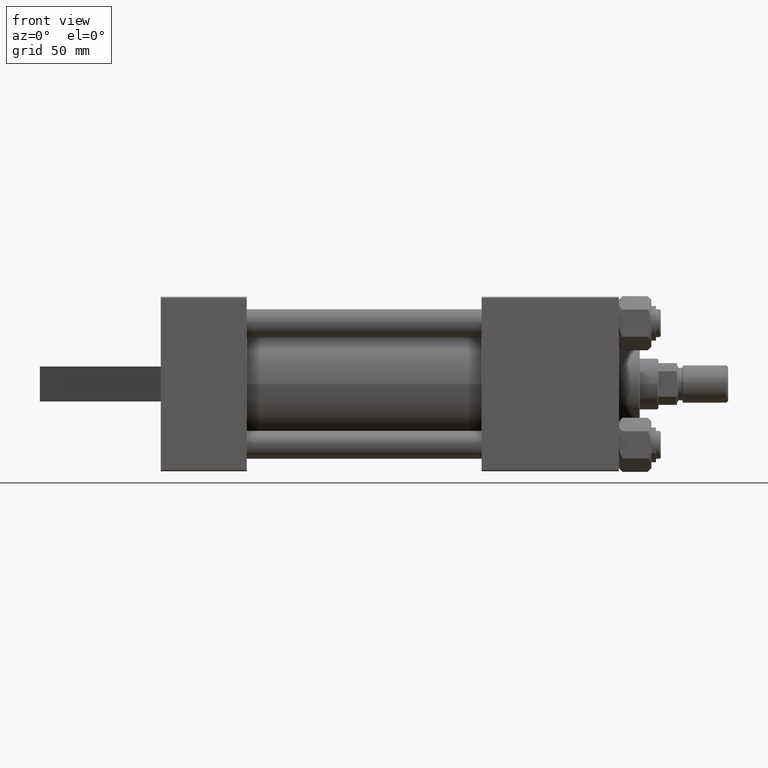
[diagram: clean part render]
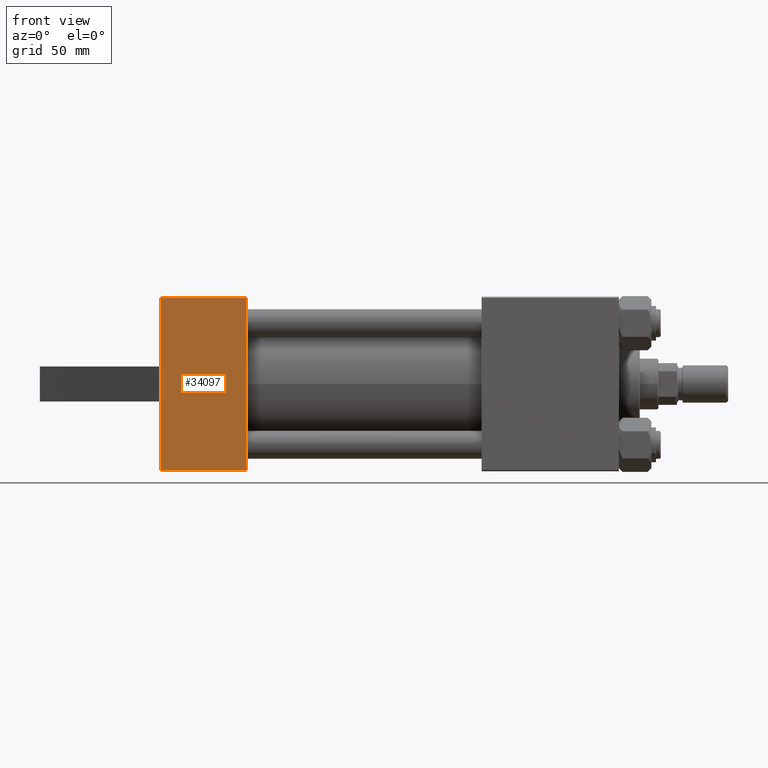
[diagram: same view with one face highlighted and labeled with its STEP entity id]
A machine part, front view. The second image highlights one B-rep face of the part: STEP entity #34097.
In plain terms, the highlighted planar face has unit normal (-0, 1, 0).
Its self-contained STEP definition (entity closure, byte-faithful):
#574 = CARTESIAN_POINT ( 'NONE',  ( 0.000000000000000000, 36.99999999999999289, 37.50000000000000000 ) ) ;
#1351 = DIRECTION ( 'NONE',  ( 1.000000000000000000, 0.000000000000000000, 0.000000000000000000 ) ) ;
#2893 = CARTESIAN_POINT ( 'NONE',  ( 37.00000000000000000, 37.49999999999999289, 37.50000000000000000 ) ) ;
#5835 = LINE ( 'NONE', #23252, #20864 ) ;
#5962 = CARTESIAN_POINT ( 'NONE',  ( 0.000000000000000000, -7.500000000000000000, 37.49999999999999289 ) ) ;
#7232 = PLANE ( 'NONE',  #44794 ) ;
#9875 = VERTEX_POINT ( 'NONE', #5962 ) ;
#9936 = LINE ( 'NONE', #2893, #33043 ) ;
#9938 = VERTEX_POINT ( 'NONE', #18396 ) ;
#10166 = DIRECTION ( 'NONE',  ( 0.000000000000000000, -1.000000000000000000, -9.251858538542971581E-17 ) ) ;
#10576 = VECTOR ( 'NONE', #14221, 1000.000000000000000 ) ;
#10845 = ORIENTED_EDGE ( 'NONE', *, *, #19666, .F. ) ;
#11071 = CARTESIAN_POINT ( 'NONE',  ( 37.00000000000000000, -37.00000000000000711, 37.49999999999999289 ) ) ;
#11670 = ORIENTED_EDGE ( 'NONE', *, *, #36870, .T. ) ;
#12639 = LINE ( 'NONE', #13563, #28930 ) ;
#13265 = EDGE_CURVE ( 'NONE', #9875, #9938, #12639, .T. ) ;
#13475 = ORIENTED_EDGE ( 'NONE', *, *, #41520, .F. ) ;
#13563 = CARTESIAN_POINT ( 'NONE',  ( 0.000000000000000000, 37.49999999999999289, 37.50000000000000000 ) ) ;
#14221 = DIRECTION ( 'NONE',  ( -1.000000000000000000, 0.000000000000000000, 0.000000000000000000 ) ) ;
#14292 = FACE_OUTER_BOUND ( 'NONE', #27146, .T. ) ;
#15614 = VECTOR ( 'NONE', #44267, 1000.000000000000000 ) ;
#18055 = DIRECTION ( 'NONE',  ( 0.000000000000000000, 9.251858538542971581E-17, -1.000000000000000000 ) ) ;
#18396 = CARTESIAN_POINT ( 'NONE',  ( 0.000000000000000000, -37.00000000000000711, 37.49999999999999289 ) ) ;
#19666 = EDGE_CURVE ( 'NONE', #9875, #30241, #5835, .T. ) ;
#20401 = DIRECTION ( 'NONE',  ( 0.000000000000000000, -1.000000000000000000, -9.251858538542971581E-17 ) ) ;
#20735 = VERTEX_POINT ( 'NONE', #29748 ) ;
#20864 = VECTOR ( 'NONE', #44850, 1000.000000000000000 ) ;
#21450 = VERTEX_POINT ( 'NONE', #34801 ) ;
#23252 = CARTESIAN_POINT ( 'NONE',  ( 0.000000000000000000, -7.500000000000000000, 37.49999999999999289 ) ) ;
#26679 = CARTESIAN_POINT ( 'NONE',  ( 0.000000000000000000, 7.500000000000000000, 37.49999999999999289 ) ) ;
#27146 = EDGE_LOOP ( 'NONE', ( #11670, #10845, #46269, #44425, #13475, #30671 ) ) ;
#27314 = EDGE_CURVE ( 'NONE', #9938, #34513, #36463, .T. ) ;
#28930 = VECTOR ( 'NONE', #20401, 1000.000000000000000 ) ;
#29748 = CARTESIAN_POINT ( 'NONE',  ( 0.000000000000000000, 36.99999999999999289, 37.50000000000000000 ) ) ;
#30241 = VERTEX_POINT ( 'NONE', #26679 ) ;
#30671 = ORIENTED_EDGE ( 'NONE', *, *, #43590, .T. ) ;
#30878 = CARTESIAN_POINT ( 'NONE',  ( 0.000000000000000000, 37.49999999999999289, 37.50000000000000000 ) ) ;
#32790 = LINE ( 'NONE', #574, #10576 ) ;
#33043 = VECTOR ( 'NONE', #10166, 1000.000000000000000 ) ;
#34097 = ADVANCED_FACE ( 'NONE', ( #14292 ), #7232, .F. ) ;
#34513 = VERTEX_POINT ( 'NONE', #42910 ) ;
#34801 = CARTESIAN_POINT ( 'NONE',  ( 37.00000000000000000, 36.99999999999999289, 37.50000000000000000 ) ) ;
#36463 = LINE ( 'NONE', #11071, #39015 ) ;
#36870 = EDGE_CURVE ( 'NONE', #20735, #30241, #37229, .T. ) ;
#37229 = LINE ( 'NONE', #30878, #15614 ) ;
#38516 = DIRECTION ( 'NONE',  ( 0.000000000000000000, 1.000000000000000000, 9.251858538542971581E-17 ) ) ;
#38747 = CARTESIAN_POINT ( 'NONE',  ( 37.00000000000000000, 37.49999999999999289, 37.50000000000000000 ) ) ;
#39015 = VECTOR ( 'NONE', #1351, 1000.000000000000000 ) ;
#41520 = EDGE_CURVE ( 'NONE', #21450, #34513, #9936, .T. ) ;
#42910 = CARTESIAN_POINT ( 'NONE',  ( 37.00000000000000000, -37.00000000000000711, 37.49999999999999289 ) ) ;
#43590 = EDGE_CURVE ( 'NONE', #21450, #20735, #32790, .T. ) ;
#44267 = DIRECTION ( 'NONE',  ( 0.000000000000000000, -1.000000000000000000, -9.251858538542971581E-17 ) ) ;
#44425 = ORIENTED_EDGE ( 'NONE', *, *, #27314, .T. ) ;
#44794 = AXIS2_PLACEMENT_3D ( 'NONE', #38747, #18055, #38516 ) ;
#44850 = DIRECTION ( 'NONE',  ( 0.000000000000000000, 1.000000000000000000, 0.000000000000000000 ) ) ;
#46269 = ORIENTED_EDGE ( 'NONE', *, *, #13265, .T. ) ;